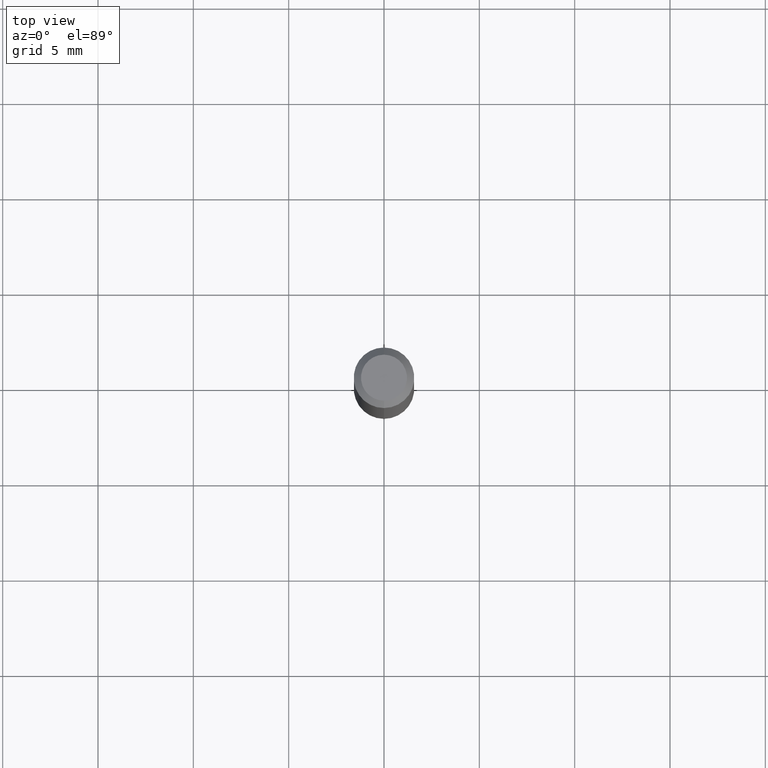
[diagram: clean part render]
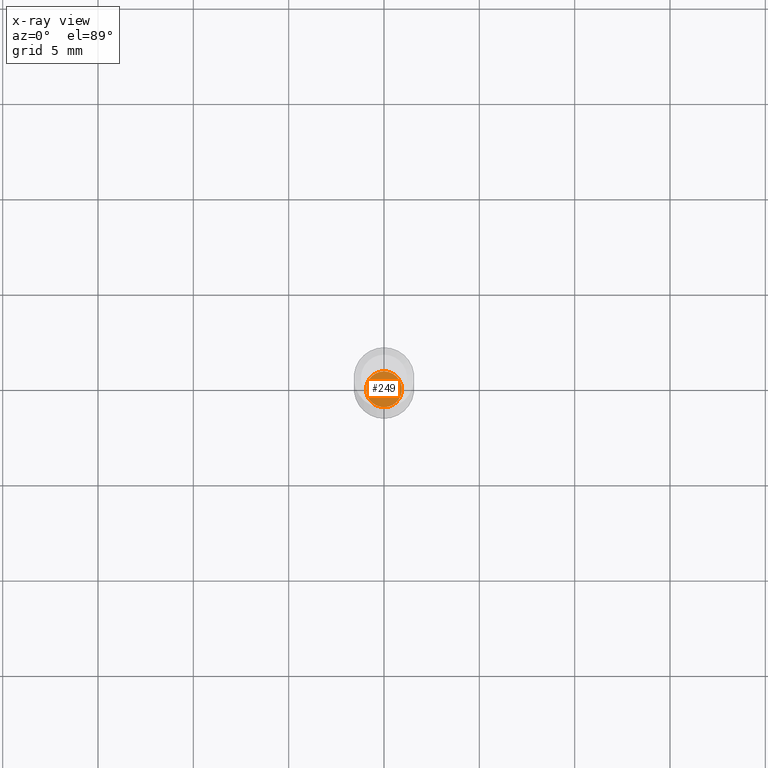
[diagram: x-ray — body ghosted, one internal face saturated and labeled with its STEP entity id]
A machine part, top view, then the same camera in x-ray: the body is ghosted and one INTERNAL B-rep face — a face not visible from any outside direction — is saturated and labeled: STEP entity #249.
In plain terms, the highlighted planar face has unit normal (-0, 0, 1).
Its self-contained STEP definition (entity closure, byte-faithful):
#15 = CARTESIAN_POINT ( 'NONE',  ( 2.646771690706718698E-16, 0.03699999999999514788, -1.387500000000000400 ) ) ;
#43 = CARTESIAN_POINT ( 'NONE',  ( 3.393060797888311598E-29, -4.844469267624513157E-15, -1.387500000000000400 ) ) ;
#64 = PLANE ( 'NONE',  #398 ) ;
#100 = FACE_OUTER_BOUND ( 'NONE', #372, .T. ) ;
#129 = DIRECTION ( 'NONE',  ( -6.982962677686265133E-15, -1.000000000000000000, 0.000000000000000000 ) ) ;
#146 = VERTEX_POINT ( 'NONE', #15 ) ;
#154 = ORIENTED_EDGE ( 'NONE', *, *, #483, .F. ) ;
#156 = CARTESIAN_POINT ( 'NONE',  ( -2.583696190743578270E-16, -0.03700000000000483458, -1.387500000000000400 ) ) ;
#169 = EDGE_CURVE ( 'NONE', #146, #455, #173, .T. ) ;
#173 = CIRCLE ( 'NONE', #279, 0.03699999999999999123 ) ;
#178 = DIRECTION ( 'NONE',  ( -2.445449223703286785E-29, 3.491509382071719844E-15, 1.000000000000000000 ) ) ;
#249 = ADVANCED_FACE ( 'NONE', ( #100 ), #64, .F. ) ;
#279 = AXIS2_PLACEMENT_3D ( 'NONE', #449, #485, #129 ) ;
#286 = ORIENTED_EDGE ( 'NONE', *, *, #169, .F. ) ;
#336 = DIRECTION ( 'NONE',  ( -6.982962677686265922E-15, -1.000000000000000000, 3.491509382071719844E-15 ) ) ;
#372 = EDGE_LOOP ( 'NONE', ( #154, #286 ) ) ;
#387 = AXIS2_PLACEMENT_3D ( 'NONE', #43, #477, #474 ) ;
#398 = AXIS2_PLACEMENT_3D ( 'NONE', #419, #178, #336 ) ;
#416 = CIRCLE ( 'NONE', #387, 0.03699999999999999123 ) ;
#419 = CARTESIAN_POINT ( 'NONE',  ( 3.393060797888311598E-29, -4.844469267624513157E-15, -1.387500000000000400 ) ) ;
#449 = CARTESIAN_POINT ( 'NONE',  ( 3.393060797888311598E-29, -4.844469267624513157E-15, -1.387500000000000400 ) ) ;
#455 = VERTEX_POINT ( 'NONE', #156 ) ;
#474 = DIRECTION ( 'NONE',  ( -6.982962677686265133E-15, -1.000000000000000000, 0.000000000000000000 ) ) ;
#477 = DIRECTION ( 'NONE',  ( -2.445449223703287346E-29, 3.491509382071719450E-15, 1.000000000000000000 ) ) ;
#483 = EDGE_CURVE ( 'NONE', #455, #146, #416, .T. ) ;
#485 = DIRECTION ( 'NONE',  ( -2.445449223703287346E-29, 3.491509382071719450E-15, 1.000000000000000000 ) ) ;